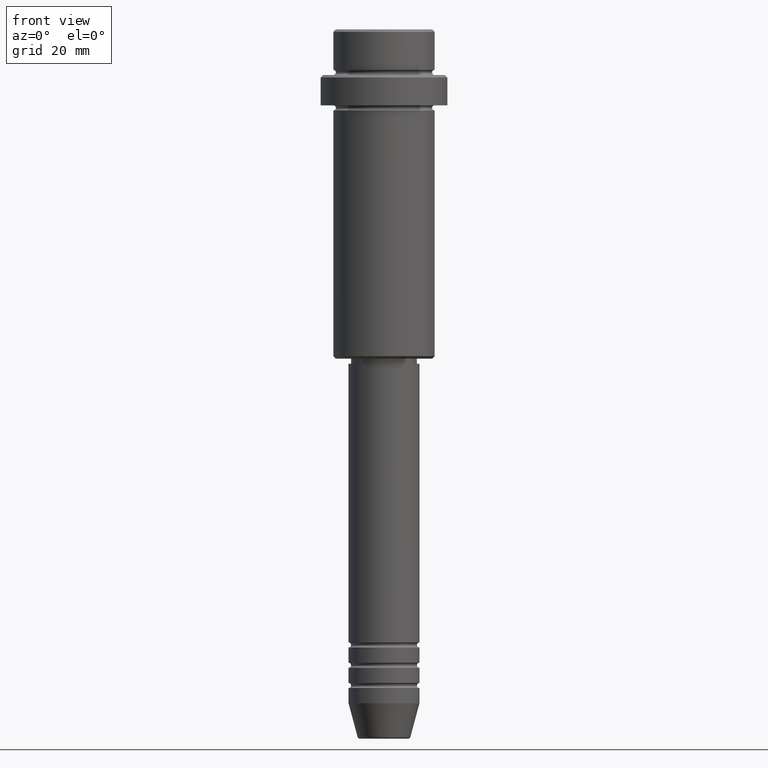
[diagram: clean part render]
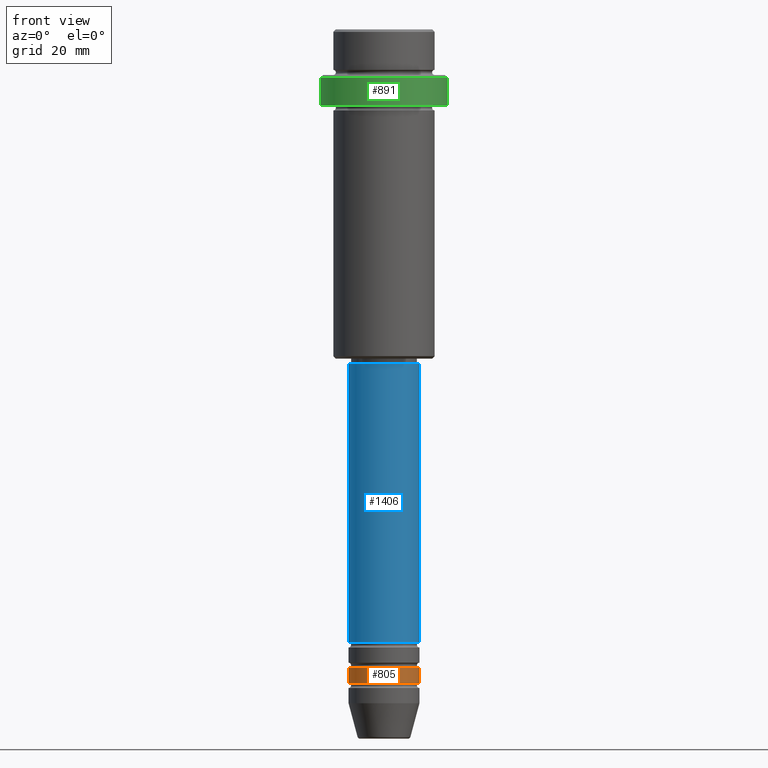
[diagram: same view with three faces highlighted in distinct colors, each labeled with its STEP entity id]
A machine part, front view with three faces highlighted in distinct colors.
Their STEP definitions:

[orange] entity #805 — the highlighted cylindrical surface (edge-blend (fillet) strip) has radius 7 mm, axis along (-0, -0, 1).
#1 = CARTESIAN_POINT ( 'NONE',  ( -7.000000000000000000, 8.572527594031473190E-16, 0.000000000000000000 ) ) ;
#51 = VECTOR ( 'NONE', #100, 1000.000000000000000 ) ;
#59 = DIRECTION ( 'NONE',  ( -0.000000000000000000, -0.000000000000000000, 1.000000000000000000 ) ) ;
#72 = CIRCLE ( 'NONE', #988, 7.000000000000000000 ) ;
#94 = EDGE_CURVE ( 'NONE', #1369, #950, #1287, .T. ) ;
#100 = DIRECTION ( 'NONE',  ( -0.000000000000000000, -0.000000000000000000, 1.000000000000000000 ) ) ;
#102 = CARTESIAN_POINT ( 'NONE',  ( 7.000000000000000000, 0.000000000000000000, -128.9999999999998863 ) ) ;
#132 = ORIENTED_EDGE ( 'NONE', *, *, #569, .F. ) ;
#136 = EDGE_CURVE ( 'NONE', #1157, #950, #72, .T. ) ;
#164 = VECTOR ( 'NONE', #858, 1000.000000000000000 ) ;
#169 = DIRECTION ( 'NONE',  ( 1.000000000000000000, 0.000000000000000000, 0.000000000000000000 ) ) ;
#191 = VERTEX_POINT ( 'NONE', #580 ) ;
#209 = CIRCLE ( 'NONE', #1009, 7.000000000000000000 ) ;
#214 = DIRECTION ( 'NONE',  ( -0.000000000000000000, -0.000000000000000000, 1.000000000000000000 ) ) ;
#287 = FACE_OUTER_BOUND ( 'NONE', #338, .T. ) ;
#320 = ORIENTED_EDGE ( 'NONE', *, *, #94, .T. ) ;
#338 = EDGE_LOOP ( 'NONE', ( #132, #798, #320, #984 ) ) ;
#542 = CARTESIAN_POINT ( 'NONE',  ( 7.000000000000000000, 0.000000000000000000, 0.000000000000000000 ) ) ;
#569 = EDGE_CURVE ( 'NONE', #191, #1157, #669, .T. ) ;
#574 = CARTESIAN_POINT ( 'NONE',  ( -7.000000000000000000, 8.572527594031473190E-16, -125.9999999999998863 ) ) ;
#580 = CARTESIAN_POINT ( 'NONE',  ( -7.000000000000000000, 8.572527594031473190E-16, -128.9999999999998863 ) ) ;
#641 = CARTESIAN_POINT ( 'NONE',  ( 0.000000000000000000, 0.000000000000000000, 0.000000000000000000 ) ) ;
#669 = LINE ( 'NONE', #1, #51 ) ;
#702 = DIRECTION ( 'NONE',  ( -0.000000000000000000, -0.000000000000000000, 1.000000000000000000 ) ) ;
#722 = EDGE_CURVE ( 'NONE', #191, #1369, #209, .T. ) ;
#798 = ORIENTED_EDGE ( 'NONE', *, *, #722, .T. ) ;
#805 = ADVANCED_FACE ( 'NONE', ( #287 ), #937, .T. ) ;
#858 = DIRECTION ( 'NONE',  ( -0.000000000000000000, -0.000000000000000000, 1.000000000000000000 ) ) ;
#912 = DIRECTION ( 'NONE',  ( 1.000000000000000000, 0.000000000000000000, 0.000000000000000000 ) ) ;
#937 = CYLINDRICAL_SURFACE ( 'NONE', #1351, 7.000000000000000000 ) ;
#950 = VERTEX_POINT ( 'NONE', #1081 ) ;
#981 = CARTESIAN_POINT ( 'NONE',  ( 0.000000000000000000, 0.000000000000000000, -125.9999999999998863 ) ) ;
#984 = ORIENTED_EDGE ( 'NONE', *, *, #136, .F. ) ;
#988 = AXIS2_PLACEMENT_3D ( 'NONE', #981, #214, #1195 ) ;
#1009 = AXIS2_PLACEMENT_3D ( 'NONE', #1131, #702, #912 ) ;
#1081 = CARTESIAN_POINT ( 'NONE',  ( 7.000000000000000000, 0.000000000000000000, -125.9999999999998863 ) ) ;
#1131 = CARTESIAN_POINT ( 'NONE',  ( 0.000000000000000000, 0.000000000000000000, -128.9999999999998863 ) ) ;
#1157 = VERTEX_POINT ( 'NONE', #574 ) ;
#1195 = DIRECTION ( 'NONE',  ( 1.000000000000000000, 0.000000000000000000, 0.000000000000000000 ) ) ;
#1287 = LINE ( 'NONE', #542, #164 ) ;
#1351 = AXIS2_PLACEMENT_3D ( 'NONE', #641, #59, #169 ) ;
#1369 = VERTEX_POINT ( 'NONE', #102 ) ;

[blue] entity #1406 — the highlighted cylindrical surface (edge-blend (fillet) strip) has radius 7 mm, axis along (-0, -0, 1).
#26 = AXIS2_PLACEMENT_3D ( 'NONE', #791, #487, #927 ) ;
#107 = CARTESIAN_POINT ( 'NONE',  ( 7.000000000000000000, 0.000000000000000000, -120.9999999999999005 ) ) ;
#118 = VERTEX_POINT ( 'NONE', #107 ) ;
#205 = FACE_OUTER_BOUND ( 'NONE', #1051, .T. ) ;
#208 = CARTESIAN_POINT ( 'NONE',  ( 7.000000000000000000, 0.000000000000000000, 0.000000000000000000 ) ) ;
#219 = DIRECTION ( 'NONE',  ( 1.000000000000000000, 0.000000000000000000, 0.000000000000000000 ) ) ;
#224 = CARTESIAN_POINT ( 'NONE',  ( 0.000000000000000000, 0.000000000000000000, 0.000000000000000000 ) ) ;
#274 = CIRCLE ( 'NONE', #26, 7.000000000000000000 ) ;
#305 = CARTESIAN_POINT ( 'NONE',  ( -7.000000000000000000, 8.572527594031473190E-16, 0.000000000000000000 ) ) ;
#333 = DIRECTION ( 'NONE',  ( -0.000000000000000000, -0.000000000000000000, 1.000000000000000000 ) ) ;
#381 = ORIENTED_EDGE ( 'NONE', *, *, #453, .T. ) ;
#398 = VERTEX_POINT ( 'NONE', #840 ) ;
#426 = EDGE_CURVE ( 'NONE', #595, #398, #954, .T. ) ;
#435 = CARTESIAN_POINT ( 'NONE',  ( 7.000000000000000000, 0.000000000000000000, -66.00000000000001421 ) ) ;
#453 = EDGE_CURVE ( 'NONE', #118, #943, #1312, .T. ) ;
#468 = ORIENTED_EDGE ( 'NONE', *, *, #622, .T. ) ;
#487 = DIRECTION ( 'NONE',  ( -0.000000000000000000, -0.000000000000000000, 1.000000000000000000 ) ) ;
#549 = DIRECTION ( 'NONE',  ( -0.000000000000000000, -0.000000000000000000, 1.000000000000000000 ) ) ;
#595 = VERTEX_POINT ( 'NONE', #888 ) ;
#622 = EDGE_CURVE ( 'NONE', #595, #118, #274, .T. ) ;
#642 = DIRECTION ( 'NONE',  ( -0.000000000000000000, -0.000000000000000000, 1.000000000000000000 ) ) ;
#665 = EDGE_CURVE ( 'NONE', #398, #943, #939, .T. ) ;
#708 = CARTESIAN_POINT ( 'NONE',  ( 0.000000000000000000, 0.000000000000000000, -66.00000000000001421 ) ) ;
#752 = CYLINDRICAL_SURFACE ( 'NONE', #1028, 7.000000000000000000 ) ;
#791 = CARTESIAN_POINT ( 'NONE',  ( 0.000000000000000000, 0.000000000000000000, -120.9999999999999005 ) ) ;
#840 = CARTESIAN_POINT ( 'NONE',  ( -7.000000000000000000, 8.572527594031473190E-16, -66.00000000000001421 ) ) ;
#870 = AXIS2_PLACEMENT_3D ( 'NONE', #708, #896, #1334 ) ;
#888 = CARTESIAN_POINT ( 'NONE',  ( -7.000000000000000000, 8.572527594031473190E-16, -120.9999999999999005 ) ) ;
#896 = DIRECTION ( 'NONE',  ( -0.000000000000000000, -0.000000000000000000, 1.000000000000000000 ) ) ;
#927 = DIRECTION ( 'NONE',  ( 1.000000000000000000, 0.000000000000000000, 0.000000000000000000 ) ) ;
#939 = CIRCLE ( 'NONE', #870, 7.000000000000000000 ) ;
#943 = VERTEX_POINT ( 'NONE', #435 ) ;
#954 = LINE ( 'NONE', #305, #1309 ) ;
#990 = VECTOR ( 'NONE', #333, 1000.000000000000000 ) ;
#1028 = AXIS2_PLACEMENT_3D ( 'NONE', #224, #549, #219 ) ;
#1051 = EDGE_LOOP ( 'NONE', ( #1349, #468, #381, #1116 ) ) ;
#1116 = ORIENTED_EDGE ( 'NONE', *, *, #665, .F. ) ;
#1309 = VECTOR ( 'NONE', #642, 1000.000000000000000 ) ;
#1312 = LINE ( 'NONE', #208, #990 ) ;
#1334 = DIRECTION ( 'NONE',  ( 1.000000000000000000, 0.000000000000000000, 0.000000000000000000 ) ) ;
#1349 = ORIENTED_EDGE ( 'NONE', *, *, #426, .F. ) ;
#1406 = ADVANCED_FACE ( 'NONE', ( #205 ), #752, .T. ) ;

[green] entity #891 — the highlighted cylindrical surface (partial cylindrical patch) has radius 12.5 mm, axis along (-0, -0, 1).
#24 = CARTESIAN_POINT ( 'NONE',  ( -12.50000000000000000, 1.530808498934191521E-15, -15.00000000000000000 ) ) ;
#49 = VERTEX_POINT ( 'NONE', #1401 ) ;
#70 = VECTOR ( 'NONE', #593, 1000.000000000000000 ) ;
#184 = DIRECTION ( 'NONE',  ( 1.000000000000000000, 0.000000000000000000, 0.000000000000000000 ) ) ;
#188 = LINE ( 'NONE', #402, #1377 ) ;
#301 = VERTEX_POINT ( 'NONE', #24 ) ;
#323 = EDGE_CURVE ( 'NONE', #301, #787, #188, .T. ) ;
#348 = CIRCLE ( 'NONE', #510, 12.50000000000000000 ) ;
#374 = DIRECTION ( 'NONE',  ( 1.000000000000000000, 0.000000000000000000, 0.000000000000000000 ) ) ;
#385 = CARTESIAN_POINT ( 'NONE',  ( 0.000000000000000000, 0.000000000000000000, -15.00000000000000000 ) ) ;
#394 = CYLINDRICAL_SURFACE ( 'NONE', #1121, 12.50000000000000000 ) ;
#402 = CARTESIAN_POINT ( 'NONE',  ( -12.50000000000000000, 1.530808498934191521E-15, 0.000000000000000000 ) ) ;
#480 = CARTESIAN_POINT ( 'NONE',  ( 12.50000000000000000, 0.000000000000000000, 0.000000000000000000 ) ) ;
#509 = CARTESIAN_POINT ( 'NONE',  ( 0.000000000000000000, 0.000000000000000000, 0.000000000000000000 ) ) ;
#510 = AXIS2_PLACEMENT_3D ( 'NONE', #385, #830, #930 ) ;
#512 = DIRECTION ( 'NONE',  ( -0.000000000000000000, -0.000000000000000000, 1.000000000000000000 ) ) ;
#550 = ORIENTED_EDGE ( 'NONE', *, *, #1042, .T. ) ;
#593 = DIRECTION ( 'NONE',  ( -0.000000000000000000, -0.000000000000000000, 1.000000000000000000 ) ) ;
#608 = EDGE_CURVE ( 'NONE', #1132, #49, #795, .T. ) ;
#623 = ORIENTED_EDGE ( 'NONE', *, *, #608, .T. ) ;
#732 = FACE_OUTER_BOUND ( 'NONE', #1212, .T. ) ;
#741 = CARTESIAN_POINT ( 'NONE',  ( -12.50000000000000000, 1.530808498934191521E-15, -9.500000000000031974 ) ) ;
#787 = VERTEX_POINT ( 'NONE', #741 ) ;
#795 = LINE ( 'NONE', #480, #70 ) ;
#815 = CARTESIAN_POINT ( 'NONE',  ( 12.50000000000000000, 0.000000000000000000, -15.00000000000000000 ) ) ;
#816 = ORIENTED_EDGE ( 'NONE', *, *, #1232, .T. ) ;
#830 = DIRECTION ( 'NONE',  ( -0.000000000000000000, -0.000000000000000000, 1.000000000000000000 ) ) ;
#852 = AXIS2_PLACEMENT_3D ( 'NONE', #1001, #1008, #374 ) ;
#891 = ADVANCED_FACE ( 'NONE', ( #732 ), #394, .T. ) ;
#911 = ORIENTED_EDGE ( 'NONE', *, *, #323, .F. ) ;
#930 = DIRECTION ( 'NONE',  ( 1.000000000000000000, 0.000000000000000000, 0.000000000000000000 ) ) ;
#1001 = CARTESIAN_POINT ( 'NONE',  ( 0.000000000000000000, 0.000000000000000000, -9.500000000000031974 ) ) ;
#1008 = DIRECTION ( 'NONE',  ( 0.000000000000000000, 0.000000000000000000, -1.000000000000000000 ) ) ;
#1042 = EDGE_CURVE ( 'NONE', #49, #787, #1076, .T. ) ;
#1076 = CIRCLE ( 'NONE', #852, 12.50000000000000000 ) ;
#1121 = AXIS2_PLACEMENT_3D ( 'NONE', #509, #1164, #184 ) ;
#1132 = VERTEX_POINT ( 'NONE', #815 ) ;
#1164 = DIRECTION ( 'NONE',  ( -0.000000000000000000, -0.000000000000000000, 1.000000000000000000 ) ) ;
#1212 = EDGE_LOOP ( 'NONE', ( #911, #816, #623, #550 ) ) ;
#1232 = EDGE_CURVE ( 'NONE', #301, #1132, #348, .T. ) ;
#1377 = VECTOR ( 'NONE', #512, 1000.000000000000000 ) ;
#1401 = CARTESIAN_POINT ( 'NONE',  ( 12.50000000000000000, 0.000000000000000000, -9.500000000000031974 ) ) ;